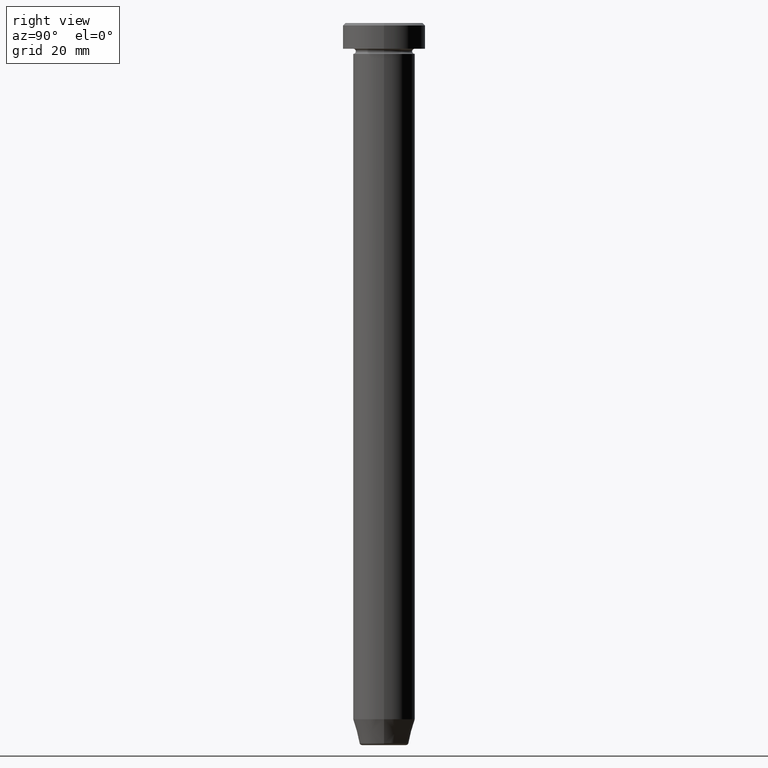
[diagram: clean part render]
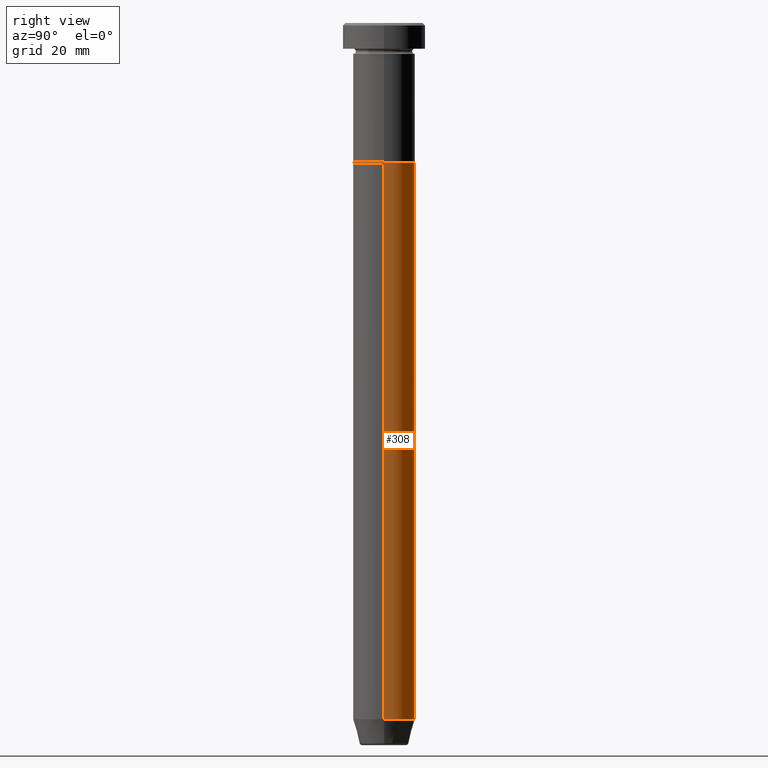
[diagram: same view with one face highlighted and labeled with its STEP entity id]
A machine part, right view. The second image highlights one B-rep face of the part: STEP entity #308.
In plain terms, the highlighted cylindrical surface (edge-blend (fillet) strip) has radius 6 mm, axis along (-0, -0, 1).
Its self-contained STEP definition (entity closure, byte-faithful):
#37 = VERTEX_POINT ( 'NONE', #386 ) ;
#56 = ORIENTED_EDGE ( 'NONE', *, *, #93, .T. ) ;
#62 = CARTESIAN_POINT ( 'NONE',  ( -6.000000000000000000, 7.347880794884119736E-16, -135.0000000000000000 ) ) ;
#80 = ORIENTED_EDGE ( 'NONE', *, *, #525, .F. ) ;
#93 = EDGE_CURVE ( 'NONE', #504, #295, #487, .T. ) ;
#110 = EDGE_CURVE ( 'NONE', #37, #504, #128, .T. ) ;
#128 = CIRCLE ( 'NONE', #490, 6.000000000000000000 ) ;
#131 = AXIS2_PLACEMENT_3D ( 'NONE', #233, #590, #192 ) ;
#173 = DIRECTION ( 'NONE',  ( -0.000000000000000000, -0.000000000000000000, 1.000000000000000000 ) ) ;
#192 = DIRECTION ( 'NONE',  ( 1.000000000000000000, 0.000000000000000000, 0.000000000000000000 ) ) ;
#205 = CARTESIAN_POINT ( 'NONE',  ( 6.000000000000000000, 0.000000000000000000, -27.00000000000000000 ) ) ;
#210 = CARTESIAN_POINT ( 'NONE',  ( 0.000000000000000000, 0.000000000000000000, -27.00000000000000000 ) ) ;
#219 = DIRECTION ( 'NONE',  ( -0.000000000000000000, -0.000000000000000000, 1.000000000000000000 ) ) ;
#227 = VECTOR ( 'NONE', #572, 1000.000000000000000 ) ;
#233 = CARTESIAN_POINT ( 'NONE',  ( 0.000000000000000000, 0.000000000000000000, 0.000000000000000000 ) ) ;
#236 = ORIENTED_EDGE ( 'NONE', *, *, #385, .F. ) ;
#282 = CYLINDRICAL_SURFACE ( 'NONE', #131, 6.000000000000000000 ) ;
#295 = VERTEX_POINT ( 'NONE', #497 ) ;
#308 = ADVANCED_FACE ( 'NONE', ( #375 ), #282, .T. ) ;
#334 = DIRECTION ( 'NONE',  ( 1.000000000000000000, 0.000000000000000000, 0.000000000000000000 ) ) ;
#338 = EDGE_LOOP ( 'NONE', ( #357, #56, #236, #80 ) ) ;
#349 = CARTESIAN_POINT ( 'NONE',  ( 6.000000000000000000, 0.000000000000000000, 0.000000000000000000 ) ) ;
#357 = ORIENTED_EDGE ( 'NONE', *, *, #110, .T. ) ;
#375 = FACE_OUTER_BOUND ( 'NONE', #338, .T. ) ;
#385 = EDGE_CURVE ( 'NONE', #478, #295, #390, .T. ) ;
#386 = CARTESIAN_POINT ( 'NONE',  ( 6.000000000000000000, 0.000000000000000000, -135.0000000000000000 ) ) ;
#390 = CIRCLE ( 'NONE', #534, 6.000000000000000000 ) ;
#406 = DIRECTION ( 'NONE',  ( 1.000000000000000000, 0.000000000000000000, 0.000000000000000000 ) ) ;
#455 = CARTESIAN_POINT ( 'NONE',  ( -6.000000000000000000, 7.347880794884119736E-16, 0.000000000000000000 ) ) ;
#478 = VERTEX_POINT ( 'NONE', #205 ) ;
#487 = LINE ( 'NONE', #455, #549 ) ;
#490 = AXIS2_PLACEMENT_3D ( 'NONE', #577, #173, #406 ) ;
#497 = CARTESIAN_POINT ( 'NONE',  ( -6.000000000000000000, 7.347880794884119736E-16, -27.00000000000000000 ) ) ;
#504 = VERTEX_POINT ( 'NONE', #62 ) ;
#525 = EDGE_CURVE ( 'NONE', #37, #478, #566, .T. ) ;
#534 = AXIS2_PLACEMENT_3D ( 'NONE', #210, #559, #334 ) ;
#549 = VECTOR ( 'NONE', #219, 1000.000000000000000 ) ;
#559 = DIRECTION ( 'NONE',  ( -0.000000000000000000, -0.000000000000000000, 1.000000000000000000 ) ) ;
#566 = LINE ( 'NONE', #349, #227 ) ;
#572 = DIRECTION ( 'NONE',  ( -0.000000000000000000, -0.000000000000000000, 1.000000000000000000 ) ) ;
#577 = CARTESIAN_POINT ( 'NONE',  ( 0.000000000000000000, 0.000000000000000000, -135.0000000000000000 ) ) ;
#590 = DIRECTION ( 'NONE',  ( -0.000000000000000000, -0.000000000000000000, 1.000000000000000000 ) ) ;